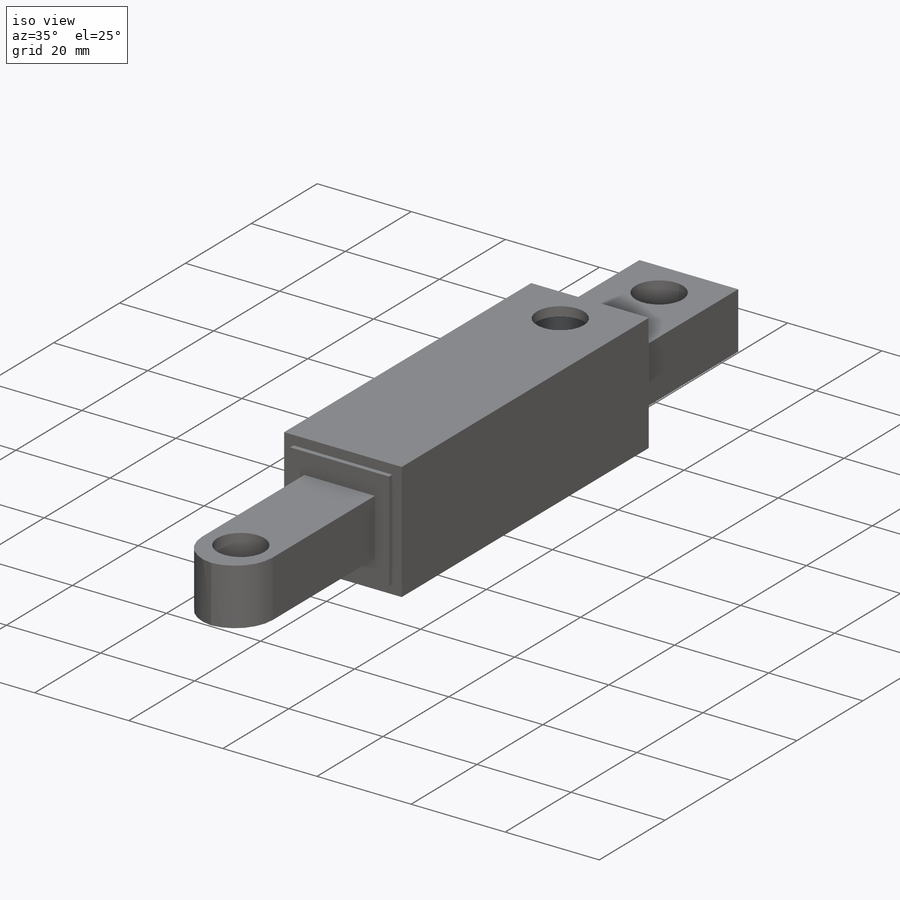
[diagram: iso view]
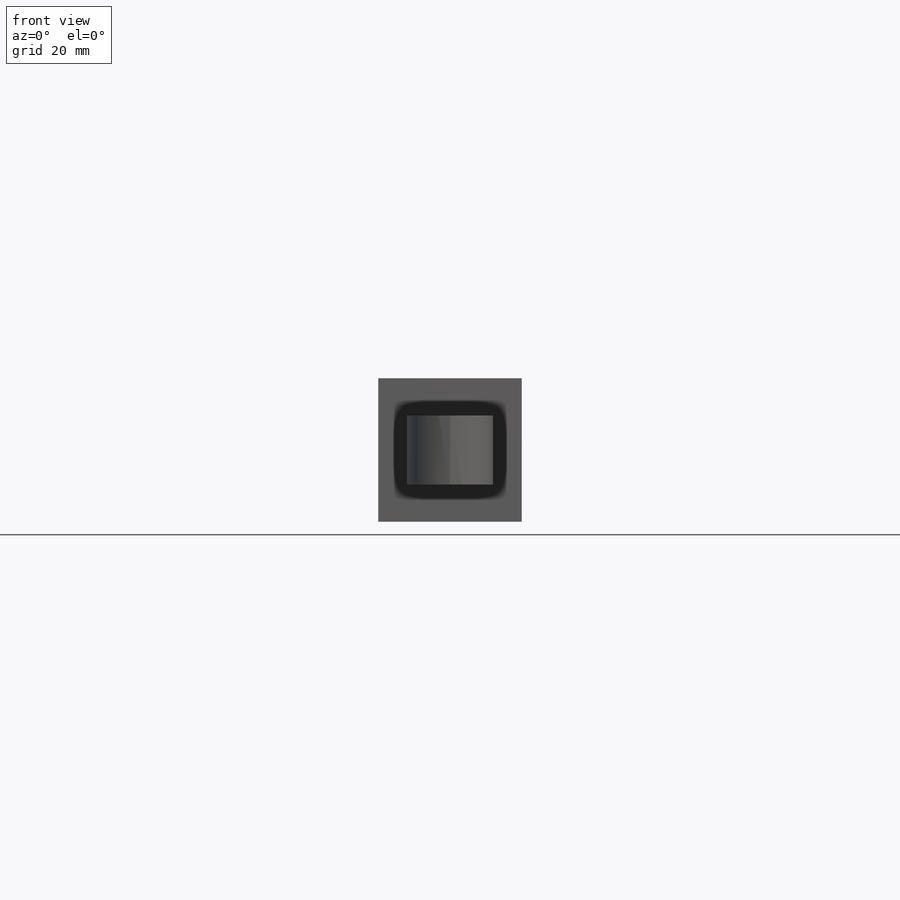
[diagram: front view]
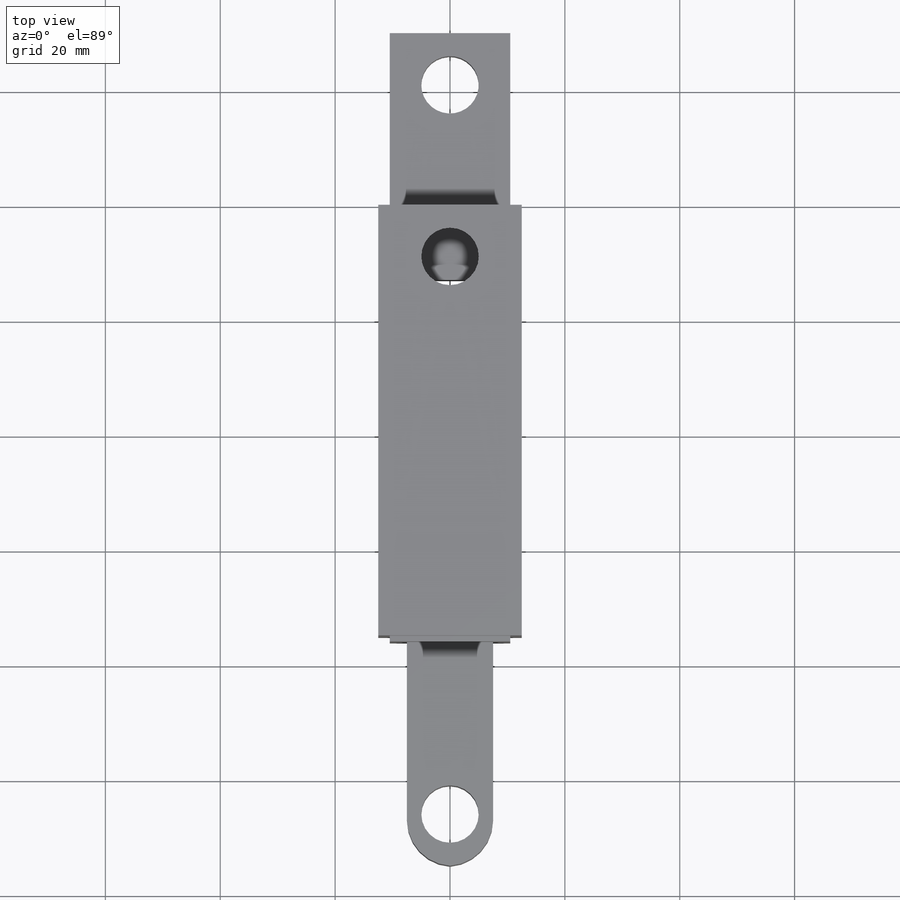
[diagram: top view]
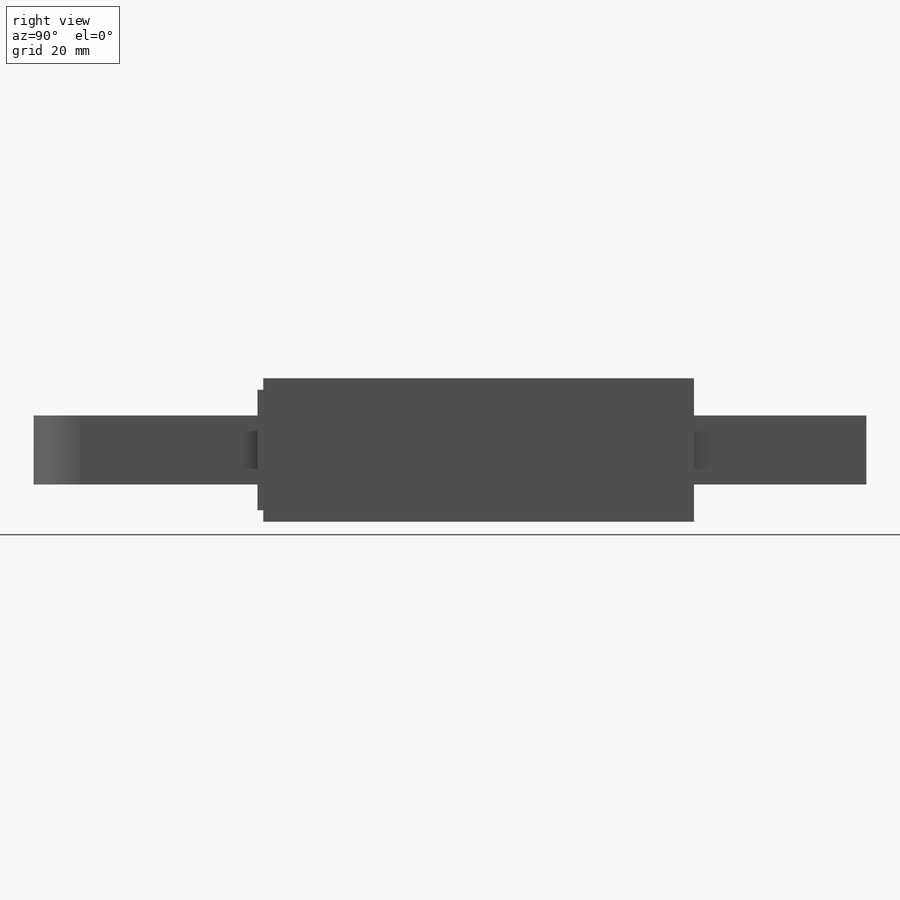
[diagram: right view]
SOLIDWORKS PART (.sldprt)
format: sldprt  version: not decoded by parser v0  size: 269,824 bytes
history: native  units: mm
features: sketch x9, extrude x4, cut_extrude x3, material x1, plane x1, fillet x1 (+13 scaffold rows collapsed)
feature tree (32):
  scaffold x13  (default folders/planes/origin — collapsed)
  material  "Material <not specified>"
  sketch  "Sketch1"  dims[D1=25.0mm D2=25.0mm D4=25.0mm D3=2.0mm]
  extrude  "Boss-Extrude1"  Depth=75mm
  sketch  "Sketch2"  dims[D1=20.0mm D2=12.0mm D3=2.0mm]
  sketch  "Sketch3"  dims[D1=10.0mm D2=4.0mm]
  cut_extrude  "Cut-Extrude2"  [1 undecoded]
  sketch  "Sketch4"  dims[D1=12.0mm D2=0.0mm D3=15.0mm D4=12.0mm]
  plane  "Plane1"  Offset=105mm
  sketch  "Sketch5"  dims[D1=4.5mm]
  extrude  "Boss-Extrude2"  Depth=1mm
  extrude  "Boss-Extrude3"  [1 undecoded]
  sketch  "Sketch5<4>"  dims[D1=39.0mm]
  fillet  "Fillet1"  Radius=8mm
  sketch  "Sketch6"  dims[D1=10.0mm D2=4.0mm]
  cut_extrude  "Cut-Extrude3"  [1 undecoded]
  sketch  "Sketch7"  dims[D1=12.0mm D2=4.5mm D3=21.0mm]
  extrude  "Boss-Extrude4"  Depth=30mm
  sketch  "Sketch8"  dims[D1=10.0mm D2=4.0mm]
  cut_extrude  "Cut-Extrude4"  [1 undecoded]
decode coverage: 13 of 17 modeling features carry decoded parameters
note: 4 parameter values undecoded
summary: no parameter record found for 4 features
note: suppression state not decoded; provenance and decode notes live in map.json
